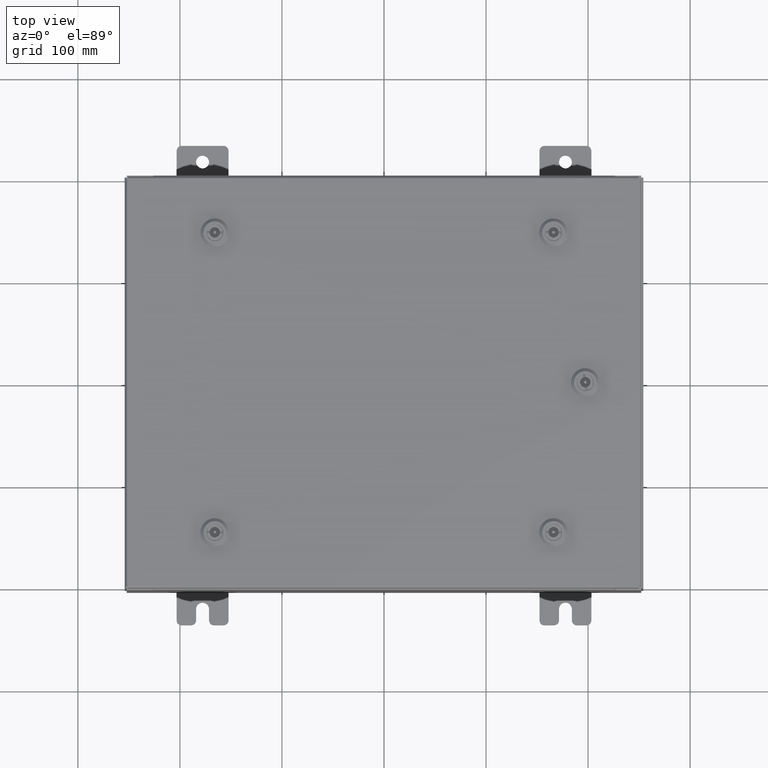
[diagram: clean part render]
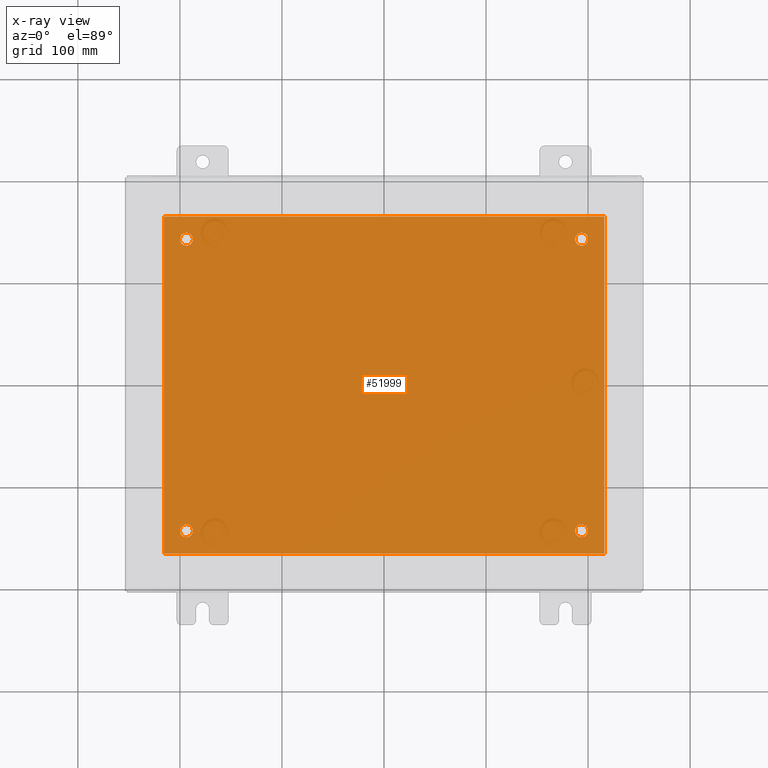
[diagram: x-ray — body ghosted, one internal face saturated and labeled with its STEP entity id]
A machine part, top view, then the same camera in x-ray: the body is ghosted and one INTERNAL B-rep face — a face not visible from any outside direction — is saturated and labeled: STEP entity #51999.
In plain terms, the highlighted planar face has unit normal (0, 0, -1).
Its self-contained STEP definition (entity closure, byte-faithful):
#2000 = VERTEX_POINT ( 'NONE', #28252 ) ;
#2435 = DIRECTION ( 'NONE',  ( 1.000000000000000000, 0.0000000000000000000, 0.0000000000000000000 ) ) ;
#3052 = CARTESIAN_POINT ( 'NONE',  ( 7.375000000000000900, 5.625000000000000000, -0.1039999999999999800 ) ) ;
#3298 = EDGE_CURVE ( 'NONE', #8206, #48438, #45723, .T. ) ;
#4644 = CARTESIAN_POINT ( 'NONE',  ( 7.625000000000000000, 5.625000000000000000, -0.1039999999999999800 ) ) ;
#4653 = CARTESIAN_POINT ( 'NONE',  ( 0.0000000000000000000, 0.0000000000000000000, -0.1039999999999999800 ) ) ;
#4656 = CARTESIAN_POINT ( 'NONE',  ( 8.500000000000003600, -6.500000000000000000, -0.1039999999999999800 ) ) ;
#4834 = DIRECTION ( 'NONE',  ( -0.0000000000000000000, -0.0000000000000000000, 1.000000000000000000 ) ) ;
#5713 = EDGE_CURVE ( 'NONE', #2000, #33398, #62332, .T. ) ;
#5817 = DIRECTION ( 'NONE',  ( -0.0000000000000000000, -0.0000000000000000000, 1.000000000000000000 ) ) ;
#6257 = AXIS2_PLACEMENT_3D ( 'NONE', #56441, #27271, #61342 ) ;
#6622 = FACE_BOUND ( 'NONE', #30172, .T. ) ;
#6840 = AXIS2_PLACEMENT_3D ( 'NONE', #4653, #48447, #19327 ) ;
#6981 = ORIENTED_EDGE ( 'NONE', *, *, #19352, .F. ) ;
#7409 = VERTEX_POINT ( 'NONE', #24180 ) ;
#8206 = VERTEX_POINT ( 'NONE', #46173 ) ;
#8770 = CARTESIAN_POINT ( 'NONE',  ( -7.625000000000000000, 5.625000000000000000, -0.1039999999999999800 ) ) ;
#8929 = LINE ( 'NONE', #38703, #20321 ) ;
#9287 = EDGE_CURVE ( 'NONE', #55108, #14184, #14177, .T. ) ;
#9530 = DIRECTION ( 'NONE',  ( -1.000000000000000000, 0.0000000000000000000, 0.0000000000000000000 ) ) ;
#10105 = CARTESIAN_POINT ( 'NONE',  ( -7.375000000000000000, 5.625000000000000000, -0.1039999999999999800 ) ) ;
#10242 = EDGE_CURVE ( 'NONE', #33398, #2000, #50702, .T. ) ;
#10463 = CIRCLE ( 'NONE', #51604, 0.2499999999999998100 ) ;
#10838 = CARTESIAN_POINT ( 'NONE',  ( 7.375000000000000900, -5.625000000000000000, -0.1039999999999999800 ) ) ;
#11270 = DIRECTION ( 'NONE',  ( -0.0000000000000000000, -0.0000000000000000000, 1.000000000000000000 ) ) ;
#11647 = ORIENTED_EDGE ( 'NONE', *, *, #24119, .T. ) ;
#13658 = DIRECTION ( 'NONE',  ( -1.000000000000000000, 0.0000000000000000000, 0.0000000000000000000 ) ) ;
#14177 = CIRCLE ( 'NONE', #22028, 0.2499999999999987000 ) ;
#14184 = VERTEX_POINT ( 'NONE', #26411 ) ;
#14577 = ORIENTED_EDGE ( 'NONE', *, *, #37691, .T. ) ;
#14886 = CIRCLE ( 'NONE', #35526, 0.2499999999999987000 ) ;
#15181 = CARTESIAN_POINT ( 'NONE',  ( -8.499999999999996400, -6.500000000000000000, -0.1039999999999999800 ) ) ;
#16190 = EDGE_CURVE ( 'NONE', #7409, #8206, #20510, .T. ) ;
#16848 = EDGE_LOOP ( 'NONE', ( #45226, #14577 ) ) ;
#18897 = PLANE ( 'NONE',  #6840 ) ;
#18983 = VECTOR ( 'NONE', #29595, 39.37007874015748100 ) ;
#19327 = DIRECTION ( 'NONE',  ( -1.000000000000000000, 0.0000000000000000000, -0.0000000000000000000 ) ) ;
#19352 = EDGE_CURVE ( 'NONE', #46582, #7409, #8929, .T. ) ;
#19415 = VECTOR ( 'NONE', #2435, 39.37007874015748100 ) ;
#20321 = VECTOR ( 'NONE', #58322, 39.37007874015748100 ) ;
#20510 = LINE ( 'NONE', #39353, #18983 ) ;
#22028 = AXIS2_PLACEMENT_3D ( 'NONE', #4644, #38611, #9530 ) ;
#23368 = CARTESIAN_POINT ( 'NONE',  ( 7.625000000000000000, -5.625000000000000000, -0.1039999999999999800 ) ) ;
#23405 = ORIENTED_EDGE ( 'NONE', *, *, #10242, .T. ) ;
#24042 = ORIENTED_EDGE ( 'NONE', *, *, #41378, .T. ) ;
#24119 = EDGE_CURVE ( 'NONE', #14184, #55108, #58186, .T. ) ;
#24180 = CARTESIAN_POINT ( 'NONE',  ( 8.500000000000003600, 6.500000000000000000, -0.1039999999999999800 ) ) ;
#24824 = ORIENTED_EDGE ( 'NONE', *, *, #9287, .T. ) ;
#25057 = DIRECTION ( 'NONE',  ( -0.0000000000000000000, -1.000000000000000000, -0.0000000000000000000 ) ) ;
#25184 = ORIENTED_EDGE ( 'NONE', *, *, #3298, .F. ) ;
#25667 = CARTESIAN_POINT ( 'NONE',  ( -7.625000000000000000, -5.625000000000000000, -0.1039999999999999800 ) ) ;
#26411 = CARTESIAN_POINT ( 'NONE',  ( 7.874999999999998200, 5.625000000000000000, -0.1039999999999999800 ) ) ;
#27271 = DIRECTION ( 'NONE',  ( -0.0000000000000000000, -0.0000000000000000000, 1.000000000000000000 ) ) ;
#27679 = CIRCLE ( 'NONE', #43095, 0.2499999999999998100 ) ;
#28252 = CARTESIAN_POINT ( 'NONE',  ( -7.874999999999999100, -5.625000000000000000, -0.1039999999999999800 ) ) ;
#28298 = DIRECTION ( 'NONE',  ( -1.000000000000000000, 0.0000000000000000000, 0.0000000000000000000 ) ) ;
#29595 = DIRECTION ( 'NONE',  ( -1.000000000000000000, -0.0000000000000000000, -0.0000000000000000000 ) ) ;
#30172 = EDGE_LOOP ( 'NONE', ( #11647, #24824 ) ) ;
#30592 = DIRECTION ( 'NONE',  ( -1.000000000000000000, 0.0000000000000000000, 0.0000000000000000000 ) ) ;
#30937 = FACE_OUTER_BOUND ( 'NONE', #61478, .T. ) ;
#32064 = VERTEX_POINT ( 'NONE', #35227 ) ;
#32816 = EDGE_LOOP ( 'NONE', ( #62232, #24042 ) ) ;
#32958 = VERTEX_POINT ( 'NONE', #34689 ) ;
#33398 = VERTEX_POINT ( 'NONE', #57736 ) ;
#33847 = EDGE_CURVE ( 'NONE', #32064, #36775, #14886, .T. ) ;
#33924 = CARTESIAN_POINT ( 'NONE',  ( 7.625000000000000000, -5.625000000000000000, -0.1039999999999999800 ) ) ;
#34146 = AXIS2_PLACEMENT_3D ( 'NONE', #25667, #59745, #30592 ) ;
#34689 = CARTESIAN_POINT ( 'NONE',  ( -7.874999999999999100, 5.625000000000000000, -0.1039999999999999800 ) ) ;
#34905 = CARTESIAN_POINT ( 'NONE',  ( -7.625000000000000000, -5.625000000000000000, -0.1039999999999999800 ) ) ;
#35227 = CARTESIAN_POINT ( 'NONE',  ( 7.874999999999998200, -5.625000000000000000, -0.1039999999999999800 ) ) ;
#35526 = AXIS2_PLACEMENT_3D ( 'NONE', #33924, #4834, #38810 ) ;
#36775 = VERTEX_POINT ( 'NONE', #10838 ) ;
#37659 = AXIS2_PLACEMENT_3D ( 'NONE', #23368, #57456, #28298 ) ;
#37691 = EDGE_CURVE ( 'NONE', #36775, #32064, #42025, .T. ) ;
#38611 = DIRECTION ( 'NONE',  ( -0.0000000000000000000, -0.0000000000000000000, 1.000000000000000000 ) ) ;
#38703 = CARTESIAN_POINT ( 'NONE',  ( 8.500000000000003600, -6.500000000000000000, -0.1039999999999999800 ) ) ;
#38810 = DIRECTION ( 'NONE',  ( -1.000000000000000000, 0.0000000000000000000, 0.0000000000000000000 ) ) ;
#39353 = CARTESIAN_POINT ( 'NONE',  ( -8.499999999999996400, 6.500000000000000000, -0.1039999999999999800 ) ) ;
#39814 = DIRECTION ( 'NONE',  ( -1.000000000000000000, 0.0000000000000000000, 0.0000000000000000000 ) ) ;
#40053 = EDGE_CURVE ( 'NONE', #48438, #46582, #61279, .T. ) ;
#40400 = CARTESIAN_POINT ( 'NONE',  ( -7.625000000000000000, 5.625000000000000000, -0.1039999999999999800 ) ) ;
#40842 = VERTEX_POINT ( 'NONE', #10105 ) ;
#41303 = CARTESIAN_POINT ( 'NONE',  ( -8.499999999999996400, -6.500000000000000000, -0.1039999999999999800 ) ) ;
#41378 = EDGE_CURVE ( 'NONE', #32958, #40842, #27679, .T. ) ;
#42025 = CIRCLE ( 'NONE', #37659, 0.2499999999999987000 ) ;
#42785 = DIRECTION ( 'NONE',  ( -0.0000000000000000000, -0.0000000000000000000, 1.000000000000000000 ) ) ;
#43095 = AXIS2_PLACEMENT_3D ( 'NONE', #8770, #42785, #13658 ) ;
#43892 = FACE_BOUND ( 'NONE', #16848, .T. ) ;
#44767 = ORIENTED_EDGE ( 'NONE', *, *, #40053, .F. ) ;
#45226 = ORIENTED_EDGE ( 'NONE', *, *, #33847, .T. ) ;
#45306 = DIRECTION ( 'NONE',  ( -1.000000000000000000, 0.0000000000000000000, 0.0000000000000000000 ) ) ;
#45723 = LINE ( 'NONE', #54237, #47248 ) ;
#46147 = ORIENTED_EDGE ( 'NONE', *, *, #16190, .F. ) ;
#46173 = CARTESIAN_POINT ( 'NONE',  ( -8.499999999999996400, 6.500000000000000000, -0.1039999999999999800 ) ) ;
#46582 = VERTEX_POINT ( 'NONE', #4656 ) ;
#47248 = VECTOR ( 'NONE', #25057, 39.37007874015748100 ) ;
#48438 = VERTEX_POINT ( 'NONE', #15181 ) ;
#48447 = DIRECTION ( 'NONE',  ( 0.0000000000000000000, 0.0000000000000000000, -1.000000000000000000 ) ) ;
#50702 = CIRCLE ( 'NONE', #56490, 0.2499999999999998100 ) ;
#51535 = EDGE_CURVE ( 'NONE', #40842, #32958, #10463, .T. ) ;
#51604 = AXIS2_PLACEMENT_3D ( 'NONE', #40400, #11270, #45306 ) ;
#51736 = ORIENTED_EDGE ( 'NONE', *, *, #5713, .T. ) ;
#51999 = ADVANCED_FACE ( 'NONE', ( #58366, #43892, #6622, #59889, #30937 ), #18897, .T. ) ;
#52270 = EDGE_LOOP ( 'NONE', ( #23405, #51736 ) ) ;
#54237 = CARTESIAN_POINT ( 'NONE',  ( -8.499999999999996400, -6.500000000000000000, -0.1039999999999999800 ) ) ;
#55108 = VERTEX_POINT ( 'NONE', #3052 ) ;
#56441 = CARTESIAN_POINT ( 'NONE',  ( 7.625000000000000000, 5.625000000000000000, -0.1039999999999999800 ) ) ;
#56490 = AXIS2_PLACEMENT_3D ( 'NONE', #34905, #5817, #39814 ) ;
#57456 = DIRECTION ( 'NONE',  ( -0.0000000000000000000, -0.0000000000000000000, 1.000000000000000000 ) ) ;
#57736 = CARTESIAN_POINT ( 'NONE',  ( -7.375000000000000000, -5.625000000000000000, -0.1039999999999999800 ) ) ;
#58186 = CIRCLE ( 'NONE', #6257, 0.2499999999999987000 ) ;
#58322 = DIRECTION ( 'NONE',  ( 0.0000000000000000000, 1.000000000000000000, 0.0000000000000000000 ) ) ;
#58366 = FACE_BOUND ( 'NONE', #52270, .T. ) ;
#59745 = DIRECTION ( 'NONE',  ( -0.0000000000000000000, -0.0000000000000000000, 1.000000000000000000 ) ) ;
#59889 = FACE_BOUND ( 'NONE', #32816, .T. ) ;
#61279 = LINE ( 'NONE', #41303, #19415 ) ;
#61342 = DIRECTION ( 'NONE',  ( -1.000000000000000000, 0.0000000000000000000, 0.0000000000000000000 ) ) ;
#61478 = EDGE_LOOP ( 'NONE', ( #6981, #44767, #25184, #46147 ) ) ;
#62232 = ORIENTED_EDGE ( 'NONE', *, *, #51535, .T. ) ;
#62332 = CIRCLE ( 'NONE', #34146, 0.2499999999999998100 ) ;